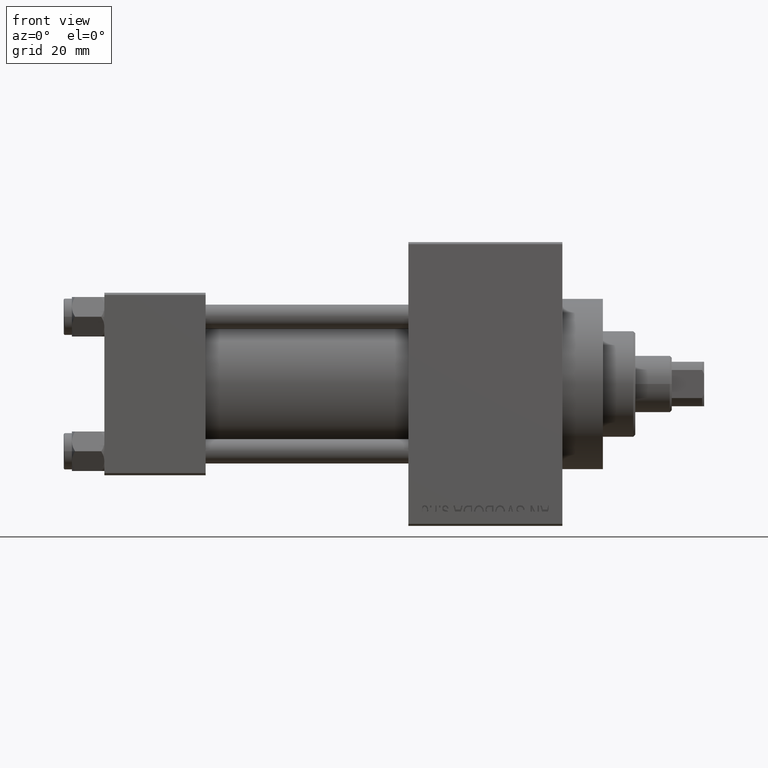
[diagram: clean part render]
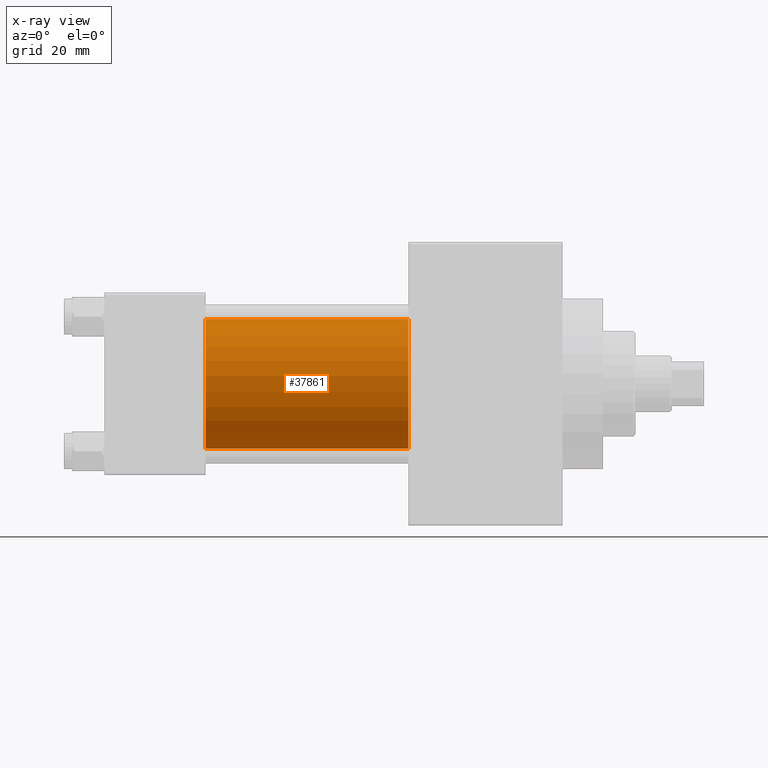
[diagram: x-ray — body ghosted, one internal face saturated and labeled with its STEP entity id]
A machine part, front view, then the same camera in x-ray: the body is ghosted and one INTERNAL B-rep face — a face not visible from any outside direction — is saturated and labeled: STEP entity #37861.
In plain terms, the highlighted cylindrical surface (partial cylindrical patch) has radius 16 mm, axis along (-1, -0, -0).
Its self-contained STEP definition (entity closure, byte-faithful):
#24 = CARTESIAN_POINT ( 'NONE',  ( 75.00000000000001421, -2.602085213965210642E-15, 16.00000000000000000 ) ) ;
#121 = AXIS2_PLACEMENT_3D ( 'NONE', #47536, #5816, #2099 ) ;
#2099 = DIRECTION ( 'NONE',  ( 0.000000000000000000, 0.000000000000000000, -1.000000000000000000 ) ) ;
#3473 = CARTESIAN_POINT ( 'NONE',  ( 75.00000000000001421, -2.602085213965210642E-15, 0.000000000000000000 ) ) ;
#3988 = CIRCLE ( 'NONE', #37293, 16.00000000000000000 ) ;
#4449 = CYLINDRICAL_SURFACE ( 'NONE', #14155, 16.00000000000000000 ) ;
#5816 = DIRECTION ( 'NONE',  ( 1.000000000000000000, 0.000000000000000000, 0.000000000000000000 ) ) ;
#6144 = DIRECTION ( 'NONE',  ( 1.000000000000000000, 0.000000000000000000, 0.000000000000000000 ) ) ;
#8278 = LINE ( 'NONE', #15724, #17279 ) ;
#8802 = ORIENTED_EDGE ( 'NONE', *, *, #36607, .T. ) ;
#9818 = ORIENTED_EDGE ( 'NONE', *, *, #40640, .F. ) ;
#12639 = VERTEX_POINT ( 'NONE', #28998 ) ;
#14072 = CARTESIAN_POINT ( 'NONE',  ( 75.00000000000001421, -2.602085213965210642E-15, 0.000000000000000000 ) ) ;
#14155 = AXIS2_PLACEMENT_3D ( 'NONE', #3473, #33751, #14889 ) ;
#14889 = DIRECTION ( 'NONE',  ( 0.000000000000000000, 0.000000000000000000, 1.000000000000000000 ) ) ;
#15485 = DIRECTION ( 'NONE',  ( -1.000000000000000000, -0.000000000000000000, -0.000000000000000000 ) ) ;
#15724 = CARTESIAN_POINT ( 'NONE',  ( 75.00000000000001421, -6.426503353294456087E-16, -16.00000000000000000 ) ) ;
#17279 = VECTOR ( 'NONE', #15485, 1000.000000000000000 ) ;
#18623 = ORIENTED_EDGE ( 'NONE', *, *, #45047, .T. ) ;
#19163 = EDGE_LOOP ( 'NONE', ( #18623, #8802, #28948, #9818 ) ) ;
#20094 = LINE ( 'NONE', #24, #37226 ) ;
#27116 = VERTEX_POINT ( 'NONE', #48717 ) ;
#28288 = CARTESIAN_POINT ( 'NONE',  ( 25.00000000000000000, -6.426503353294456087E-16, -16.00000000000000000 ) ) ;
#28948 = ORIENTED_EDGE ( 'NONE', *, *, #47367, .F. ) ;
#28998 = CARTESIAN_POINT ( 'NONE',  ( 25.00000000000000000, -2.602085213965210642E-15, 16.00000000000000000 ) ) ;
#33751 = DIRECTION ( 'NONE',  ( -1.000000000000000000, -0.000000000000000000, -0.000000000000000000 ) ) ;
#36607 = EDGE_CURVE ( 'NONE', #40225, #38695, #8278, .T. ) ;
#37226 = VECTOR ( 'NONE', #39475, 1000.000000000000000 ) ;
#37293 = AXIS2_PLACEMENT_3D ( 'NONE', #14072, #6144, #44606 ) ;
#37861 = ADVANCED_FACE ( 'NONE', ( #38462 ), #4449, .F. ) ;
#38462 = FACE_OUTER_BOUND ( 'NONE', #19163, .T. ) ;
#38695 = VERTEX_POINT ( 'NONE', #28288 ) ;
#39475 = DIRECTION ( 'NONE',  ( -1.000000000000000000, -0.000000000000000000, -0.000000000000000000 ) ) ;
#40225 = VERTEX_POINT ( 'NONE', #43556 ) ;
#40640 = EDGE_CURVE ( 'NONE', #27116, #12639, #20094, .T. ) ;
#43556 = CARTESIAN_POINT ( 'NONE',  ( 75.00000000000001421, -6.426503353294456087E-16, -16.00000000000000000 ) ) ;
#44606 = DIRECTION ( 'NONE',  ( 0.000000000000000000, 0.000000000000000000, -1.000000000000000000 ) ) ;
#45047 = EDGE_CURVE ( 'NONE', #27116, #40225, #3988, .T. ) ;
#45309 = CIRCLE ( 'NONE', #121, 16.00000000000000000 ) ;
#47367 = EDGE_CURVE ( 'NONE', #12639, #38695, #45309, .T. ) ;
#47536 = CARTESIAN_POINT ( 'NONE',  ( 25.00000000000000000, -2.602085213965210642E-15, 0.000000000000000000 ) ) ;
#48717 = CARTESIAN_POINT ( 'NONE',  ( 75.00000000000001421, -2.602085213965210642E-15, 16.00000000000000000 ) ) ;